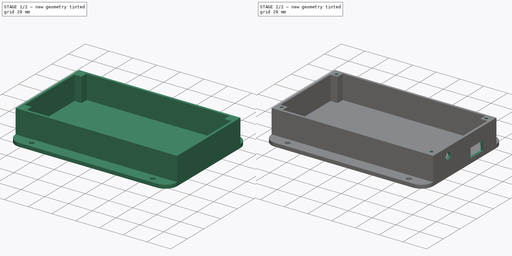
[diagram: build sequence overview — one tinted view per stage of 2, left to right]
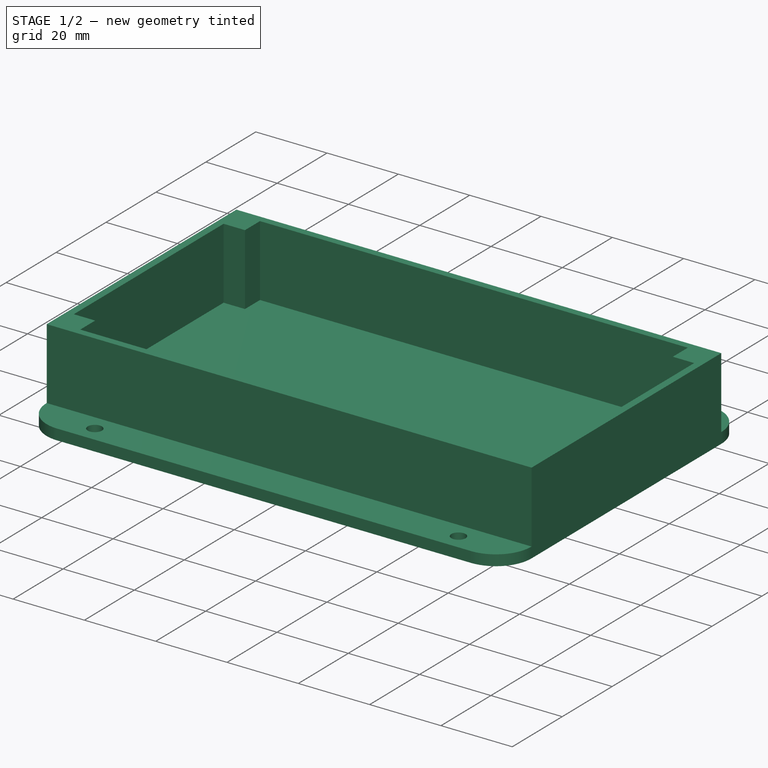
[diagram: stage 1 of 2 — iso view after this stage's code; geometry added in this stage tinted green]
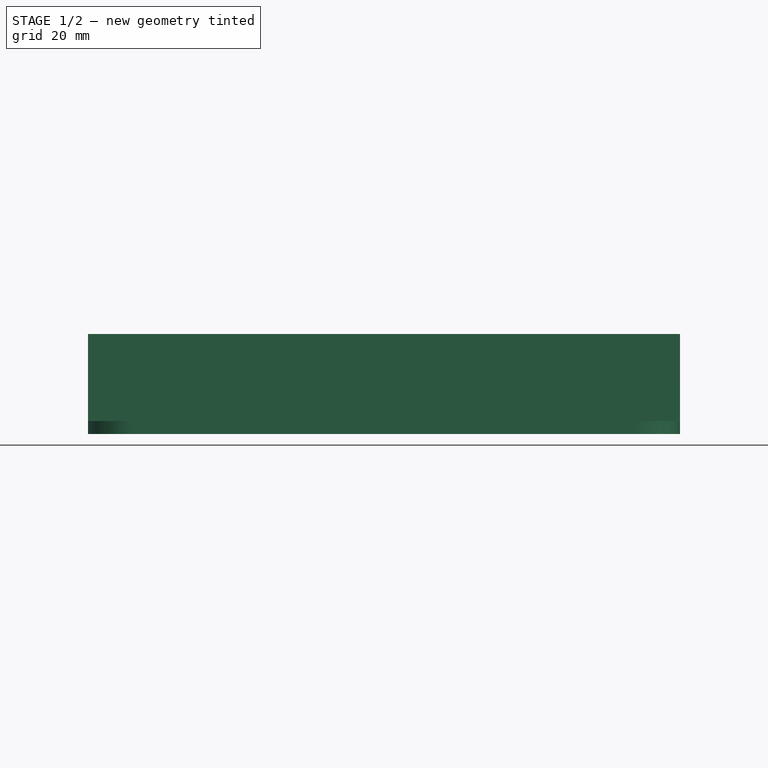
[diagram: stage 1 of 2 — front view after this stage's code; geometry added in this stage tinted green]
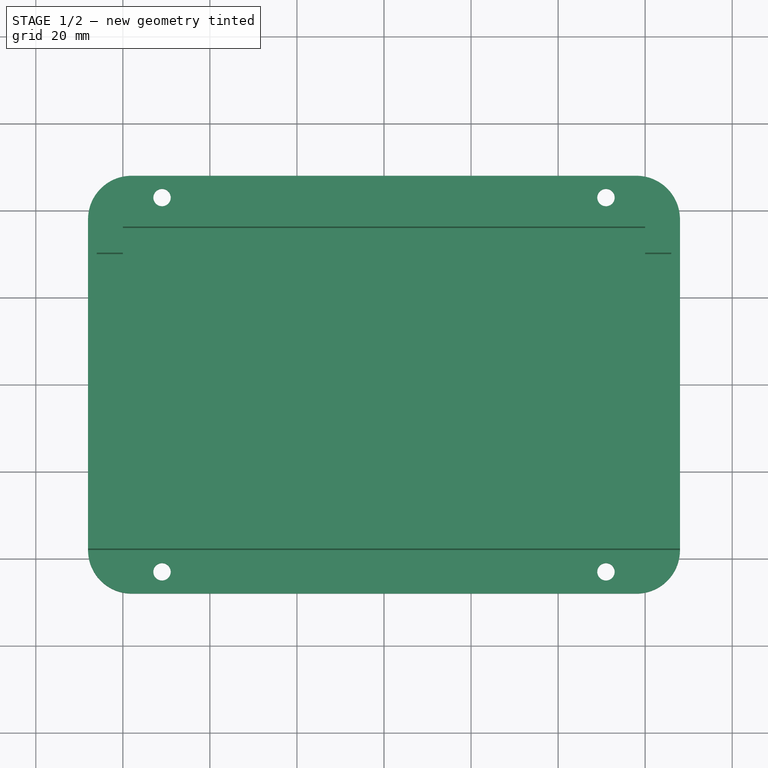
[diagram: stage 1 of 2 — top view after this stage's code; geometry added in this stage tinted green]
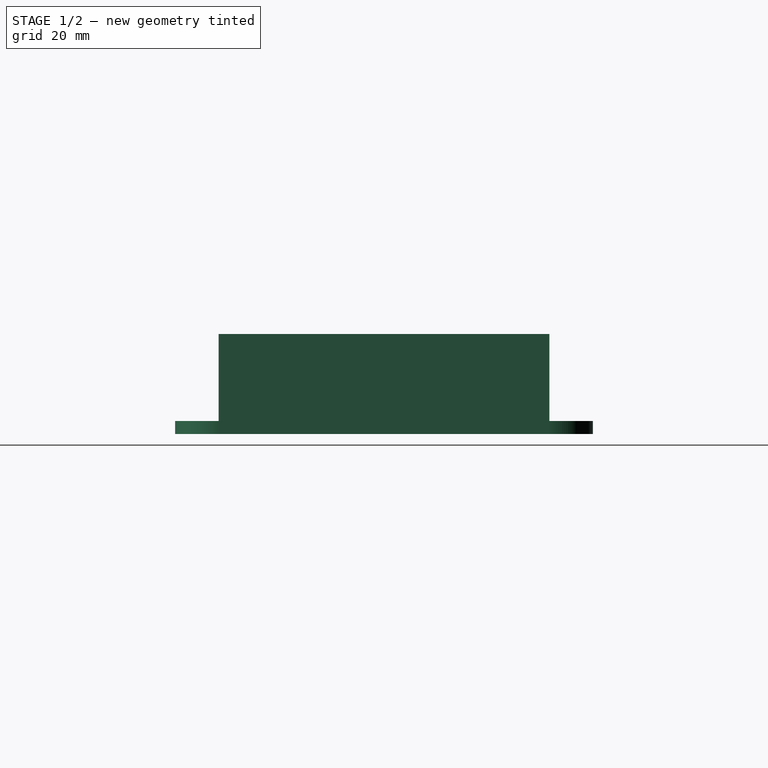
[diagram: stage 1 of 2 — right view after this stage's code; geometry added in this stage tinted green]
FCSTD DOCUMENT  (FreeCAD 0.19R24291 (Git))
Label: Base2
License: All rights reserved
LicenseURL: http://en.wikipedia.org/wiki/All_rights_reserved
objects: Sketcher::SketchObject×4, PartDesign::Pad×2, PartDesign::Pocket×2, PartDesign::Body×1
note: 13 computed .brp shape members not serialized (recipe doc carries the construction recipe); baked Part::Feature solids carry a one-line shape summary decoded from their .brp

FEATURE [Sketcher::SketchObject] Sketch
  FullyConstrained = true
  MapMode = 5
  Support = -> [XY_Plane]
  sketch-geometry (12):
    g0: LineSegment StartX=-58 StartY=48 StartZ=0 EndX=58 EndY=48 EndZ=0
    g1: LineSegment StartX=68 StartY=38 StartZ=0 EndX=68 EndY=-38 EndZ=0
    g2: LineSegment StartX=58 StartY=-48 StartZ=0 EndX=-58 EndY=-48 EndZ=0
    g3: LineSegment StartX=-68 StartY=-38 StartZ=0 EndX=-68 EndY=38 EndZ=0
    g4: Circle CenterX=-51 CenterY=43 CenterZ=0 NormalX=0 NormalY=0 NormalZ=1 AngleXU=0 Radius=2
    g5: Circle CenterX=51 CenterY=43 CenterZ=0 NormalX=0 NormalY=0 NormalZ=1 AngleXU=0 Radius=2
    g6: Circle CenterX=-51 CenterY=-43 CenterZ=0 NormalX=0 NormalY=0 NormalZ=1 AngleXU=0 Radius=2
    g7: Circle CenterX=51 CenterY=-43 CenterZ=0 NormalX=0 NormalY=0 NormalZ=1 AngleXU=0 Radius=2
    g8: ArcOfCircle CenterX=-58 CenterY=38 CenterZ=0 NormalX=0 NormalY=0 NormalZ=1 AngleXU=0 Radius=10 StartAngle=1.5708 EndAngle=3.14159
    g9: ArcOfCircle CenterX=-58 CenterY=-38 CenterZ=0 NormalX=0 NormalY=0 NormalZ=1 AngleXU=0 Radius=10 StartAngle=3.14159 EndAngle=4.71239
    g10: ArcOfCircle CenterX=58 CenterY=-38 CenterZ=0 NormalX=0 NormalY=0 NormalZ=1 AngleXU=0 Radius=10 StartAngle=4.71239 EndAngle=6.28319
    g11: ArcOfCircle CenterX=58 CenterY=38 CenterZ=0 NormalX=0 NormalY=0 NormalZ=1 AngleXU=0 Radius=10 StartAngle=0 EndAngle=1.5708
  constraints (26):
    c: Horizontal(g0)
    c: Vertical(g1)
    c: Radius(g4) = 2
    c: Equal(g4,g5) = 2
    c: Equal(g4,g6) = 2
    c: Equal(g6,g7) = 2
    c: Tangent(g0,g8) = 1.5708
    c: Tangent(g3,g8) = 1.5708
    c: Vertical(g3)
    c: Tangent(g2,g9) = 1.5708
    c: Tangent(g3,g9) = 1.5708
    c: Tangent(g1,g10) = 1.5708
    c: Tangent(g2,g10) = 1.5708
    c: Tangent(g0,g11) = 1.5708
    c: Tangent(g1,g11) = 1.5708
    c: DistanceX(g10,g1) = 10
    c: Symmetric(g8,g11,g-2)
    c: Symmetric(g9,g10,g-2)
    c: Symmetric(g8,g9,g-1)
    c: DistanceX(g8,g-1) = 58
    c: DistanceY(g-1,g11) = 38
    c: Symmetric(g4,g6,g-1)
    c: Symmetric(g5,g7,g-1)
    c: DistanceX(g4,g-1) = 51
    c: Symmetric(g4,g5,g-2)
    c: DistanceY(g6,g-1) = 43
FEATURE [PartDesign::Pad] Pad
  Direction = (1,1,1)
  Length = 3
  Length2 = 100
  Profile = -> Sketch
  Type = 0
FEATURE [Sketcher::SketchObject] Sketch001
  FullyConstrained = true
  MapMode = 5
  Placement = pos=(0,0,3) rot=(0,0,1;0rad)
  Support = -> [Pad]
  sketch-geometry (24):
    g0: LineSegment StartX=-68 StartY=38 StartZ=0 EndX=68 EndY=38 EndZ=0
    g1: LineSegment StartX=68 StartY=38 StartZ=0 EndX=68 EndY=-38 EndZ=0
    g2: LineSegment StartX=68 StartY=-38 StartZ=0 EndX=-68 EndY=-38 EndZ=0
    g3: LineSegment StartX=-68 StartY=-38 StartZ=0 EndX=-68 EndY=38 EndZ=0
    g4: LineSegment StartX=-60 StartY=36 StartZ=0 EndX=60 EndY=36 EndZ=0
    g5: LineSegment StartX=66 StartY=30 StartZ=0 EndX=66 EndY=-30 EndZ=0
    g6: LineSegment StartX=60 StartY=-36 StartZ=0 EndX=-60 EndY=-36 EndZ=0
    g7: LineSegment StartX=-66 StartY=-30 StartZ=0 EndX=-66 EndY=30 EndZ=0
    g8: LineSegment StartX=-66 StartY=-30 StartZ=0 EndX=-60 EndY=-30 EndZ=0
    g9: LineSegment StartX=-60 StartY=-30 StartZ=0 EndX=-60 EndY=-36 EndZ=0
    g10: GeomPoint X=-63 Y=-30 Z=0
    g11: GeomPoint X=-60 Y=-33 Z=0
    g12: LineSegment StartX=60 StartY=-36 StartZ=0 EndX=60 EndY=-30 EndZ=0
    g13: LineSegment StartX=66 StartY=-30 StartZ=0 EndX=60 EndY=-30 EndZ=0
    g14: GeomPoint X=60 Y=-33 Z=0
    g15: GeomPoint X=63 Y=-30 Z=0
    g16: LineSegment StartX=60 StartY=36 StartZ=0 EndX=60 EndY=30 EndZ=0
    g17: LineSegment StartX=66 StartY=30 StartZ=0 EndX=60 EndY=30 EndZ=0
    g18: GeomPoint X=60 Y=33 Z=0
    g19: GeomPoint X=63 Y=30 Z=0
    g20: LineSegment StartX=-66 StartY=30 StartZ=0 EndX=-60 EndY=30 EndZ=0
    g21: LineSegment StartX=-60 StartY=36 StartZ=0 EndX=-60 EndY=30 EndZ=0
    g22: GeomPoint X=-63 Y=30 Z=0
    g23: GeomPoint X=-60 Y=33 Z=0
  constraints (61):
    c: Coincident(g0,g1)
    c: Coincident(g1,g2)
    c: Coincident(g2,g3)
    c: Coincident(g3,g0)
    c: DistanceX(g2,g-1) = 68
    c: DistanceY(g-1,g0) = 38
    c: Symmetric(g0,g1,g-1)
    c: Symmetric(g0,g0,g-2)
    c: Horizontal(g6)
    c: Vertical(g7)
    c: Horizontal(g8)
    c: Coincident(g9,g8)
    c: Vertical(g9)
    c: Equal(g8,g9)
    c: DistanceX(g8,g8) = 6
    c: Coincident(g7,g8)
    c: Coincident(g6,g9)
    c: PointOnObject(g10,g8)
    c: DistanceX(g7,g10) = 3
    c: PointOnObject(g11,g9)
    c: DistanceY(g6,g11) = 3
    c: Vertical(g5)
    c: Horizontal(g4)
    c: Symmetric(g0,g2,g-1)
    c: Vertical(g12)
    c: Coincident(g13,g12)
    c: Horizontal(g13)
    c: Equal(g13,g12)
    c: DistanceY(g12,g12) = 6
    c: Coincident(g5,g13)
    c: Coincident(g6,g12)
    c: PointOnObject(g14,g12)
    c: PointOnObject(g15,g13)
    c: DistanceX(g15,g5) = 3
    c: DistanceY(g6,g14) = 3
    c: Coincident(g17,g16)
    c: Horizontal(g17)
    c: DistanceY(g16,g16) = 6
    c: DistanceX(g17,g17) = 6
    c: Coincident(g4,g16)
    c: Coincident(g5,g17)
    c: PointOnObject(g18,g16)
    c: PointOnObject(g19,g17)
    c: DistanceY(g18,g4) = 3
    c: DistanceX(g19,g5) = 3
    c: Vertical(g16)
    c: Horizontal(g20)
    c: Coincident(g21,g20)
    c: Vertical(g21)
    c: Coincident(g7,g20)
    c: Coincident(g4,g21)
    c: PointOnObject(g22,g20)
    c: PointOnObject(g23,g21)
    c: DistanceX(g7,g22) = 3
    c: DistanceY(g23,g4) = 3
    c: Equal(g21,g20)
    c: DistanceX(g20,g20) = 6
    c: DistanceX(g4,g4) = 120
    c: DistanceY(g5,g5) = 60
    c: DistanceY(g5,g-1) = 30
    c: DistanceX(g7,g-1) = 66
FEATURE [PartDesign::Pad] Pad001
  BaseFeature = -> Pad
  Direction = (1,1,1)
  Length = 20
  Length2 = 100
  Profile = -> Sketch001
  Type = 0
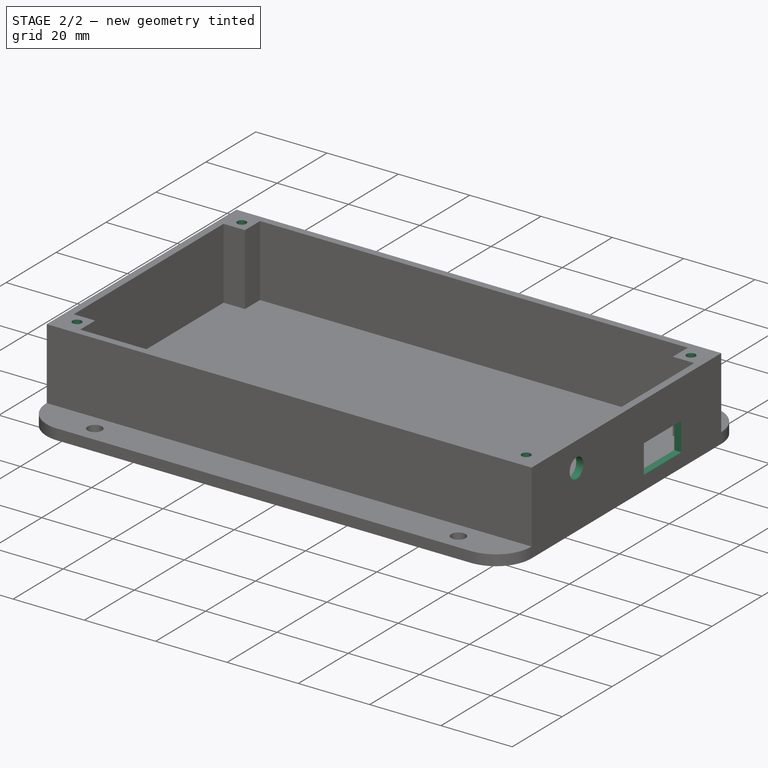
[diagram: stage 2 of 2 — iso view after this stage's code; geometry added in this stage tinted green]
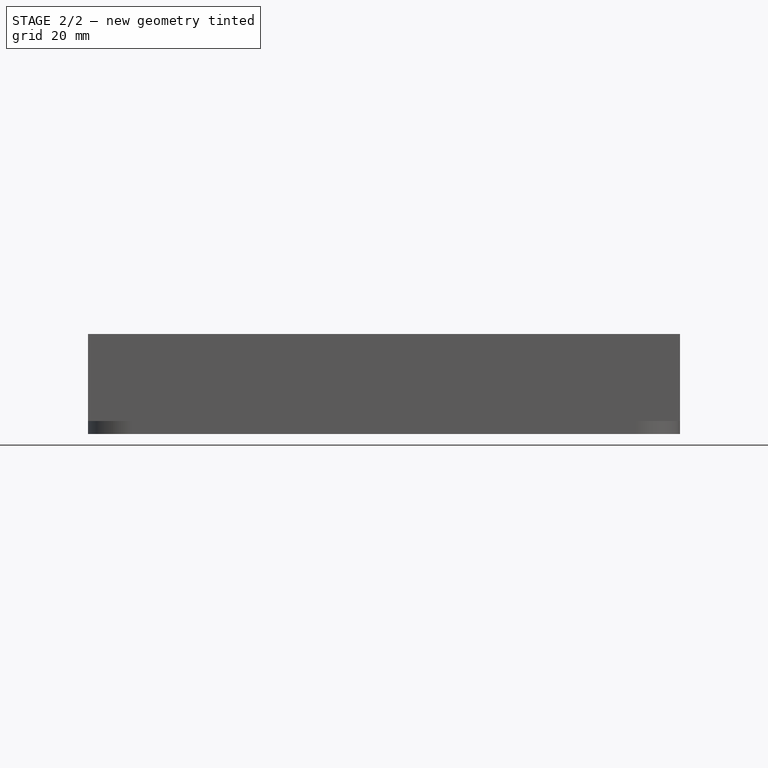
[diagram: stage 2 of 2 — front view after this stage's code; geometry added in this stage tinted green]
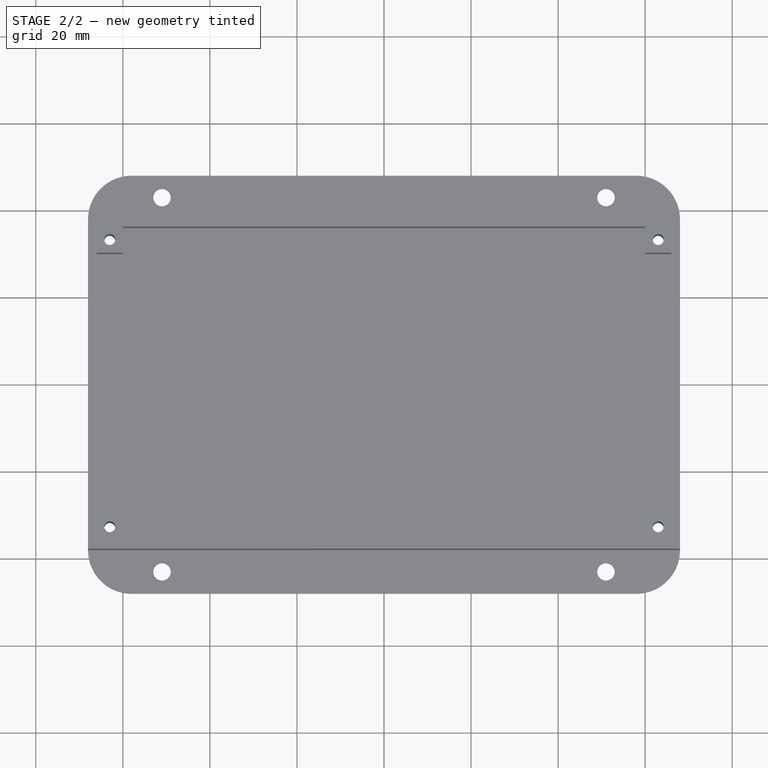
[diagram: stage 2 of 2 — top view after this stage's code; geometry added in this stage tinted green]
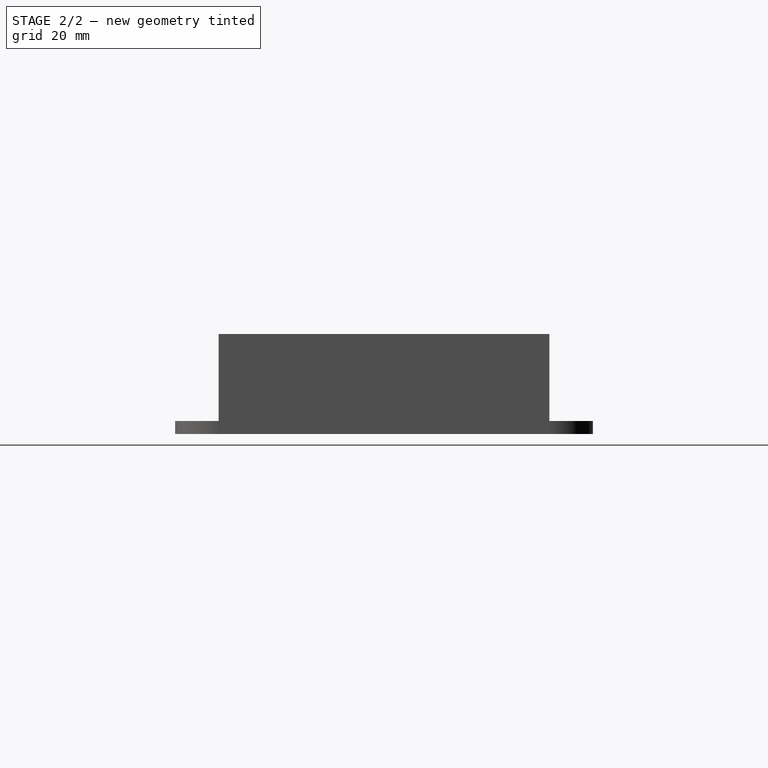
[diagram: stage 2 of 2 — right view after this stage's code; geometry added in this stage tinted green]
FEATURE [Sketcher::SketchObject] Sketch002
  FullyConstrained = true
  MapMode = 5
  Placement = pos=(0,0,23) rot=(0,0,1;0rad)
  sketch-geometry (4):
    g0: Circle CenterX=63 CenterY=-33 CenterZ=0 NormalX=0 NormalY=0 NormalZ=1 AngleXU=0 Radius=1.25
    g1: Circle CenterX=-63 CenterY=-33 CenterZ=0 NormalX=0 NormalY=0 NormalZ=1 AngleXU=0 Radius=1.25
    g2: Circle CenterX=-63 CenterY=33 CenterZ=0 NormalX=0 NormalY=0 NormalZ=1 AngleXU=0 Radius=1.25
    g3: Circle CenterX=63 CenterY=33 CenterZ=0 NormalX=0 NormalY=0 NormalZ=1 AngleXU=0 Radius=1.25
  constraints (9):
    c: DistanceX(g-1,g0) = 63
    c: DistanceY(g0,g-1) = 33
    c: Diameter(g0) = 2.5
    c: Equal(g0,g1) = 2.5
    c: Symmetric(g1,g0,g-2)
    c: Equal(g0,g2) = 2.5
    c: Symmetric(g2,g1,g-1)
    c: Equal(g0,g3) = 2.5
    c: Symmetric(g3,g0,g-1)
FEATURE [PartDesign::Pocket] Pocket
  BaseFeature = -> Pad001
  Length = 23
  Length2 = 100
  Profile = -> Sketch002
  Type = 0
FEATURE [Sketcher::SketchObject] Sketch003
  FullyConstrained = true
  MapMode = 5
  Placement = pos=(68,0,0) rot=(0.57735,0.57735,0.57735;2.0944rad)
  Support = -> [Pocket]
  sketch-geometry (5):
    g0: Circle CenterX=-20 CenterY=16 CenterZ=0 NormalX=0 NormalY=0 NormalZ=1 AngleXU=0 Radius=2.75
    g1: LineSegment StartX=7 StartY=12 StartZ=0 EndX=22 EndY=12 EndZ=0
    g2: LineSegment StartX=22 StartY=12 StartZ=0 EndX=22 EndY=4 EndZ=0
    g3: LineSegment StartX=22 StartY=4 StartZ=0 EndX=7 EndY=4 EndZ=0
    g4: LineSegment StartX=7 StartY=4 StartZ=0 EndX=7 EndY=12 EndZ=0
  constraints (15):
    c: Diameter(g0) = 5.5
    c: DistanceX(g0,g-1) = 20
    c: Coincident(g1,g2)
    c: Coincident(g2,g3)
    c: Coincident(g3,g4)
    c: Coincident(g4,g1)
    c: Horizontal(g1)
    c: Horizontal(g3)
    c: Vertical(g2)
    c: Vertical(g4)
    c: DistanceY(g-1,g0) = 16
    c: DistanceX(g1,g1) = 15
    c: DistanceY(g2,g2) = 8
    c: DistanceX(g-1,g3) = 7
    c: DistanceY(g-1,g3) = 4
FEATURE [PartDesign::Pocket] Pocket001
  BaseFeature = -> Pocket
  Length = 5
  Length2 = 100
  Profile = -> Sketch003
  Type = 0
FEATURE [PartDesign::Body] Body
  Group = -> [Sketch,Pad,Sketch001,Pad001,Sketch002,Pocket,Sketch003,Pocket001]
  Origin = -> Origin
  Tip = -> Pocket001
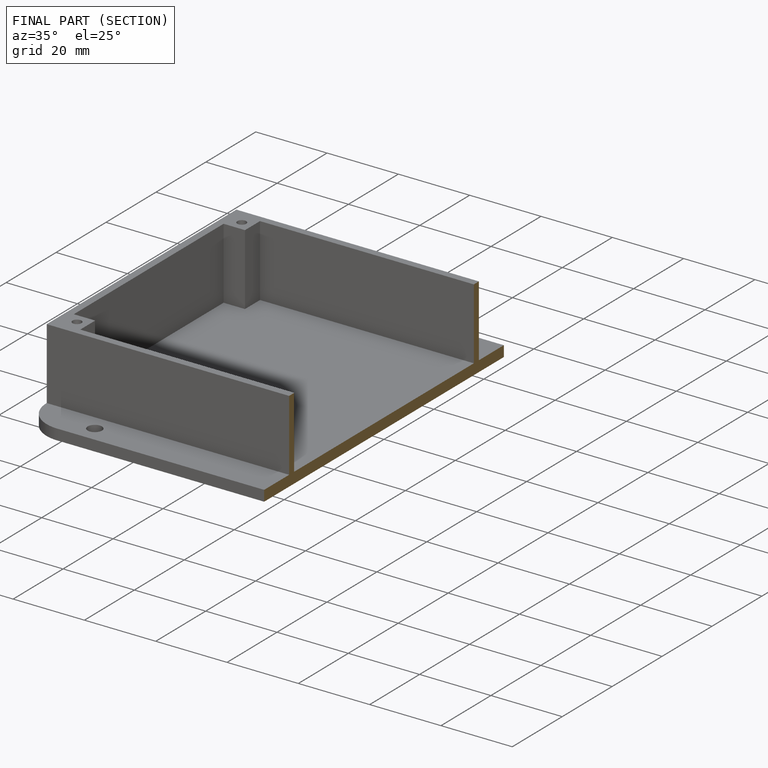
[diagram: finished part — half-section view (interior)]
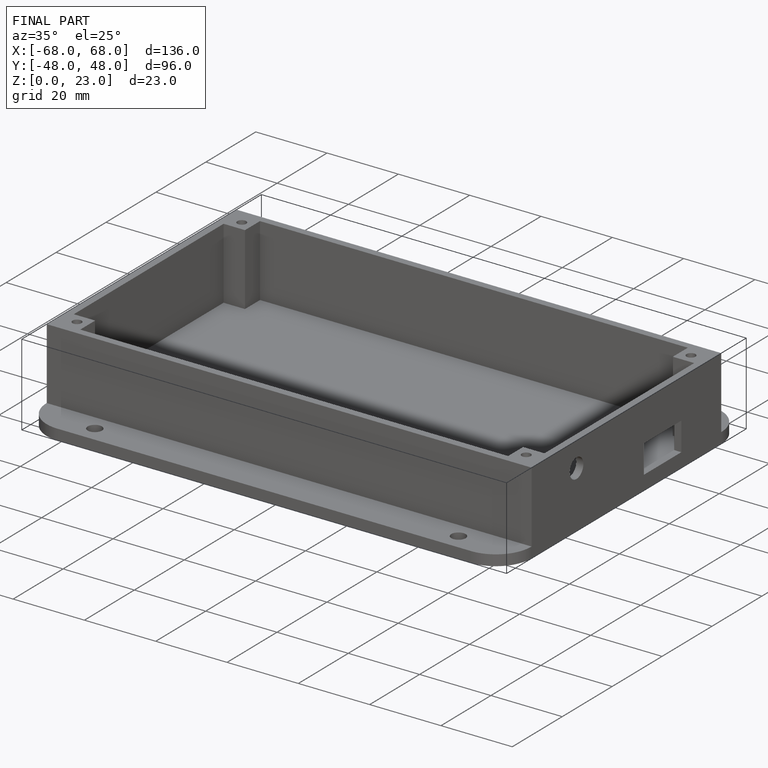
[diagram: finished part — iso view with bounding-box wireframe]
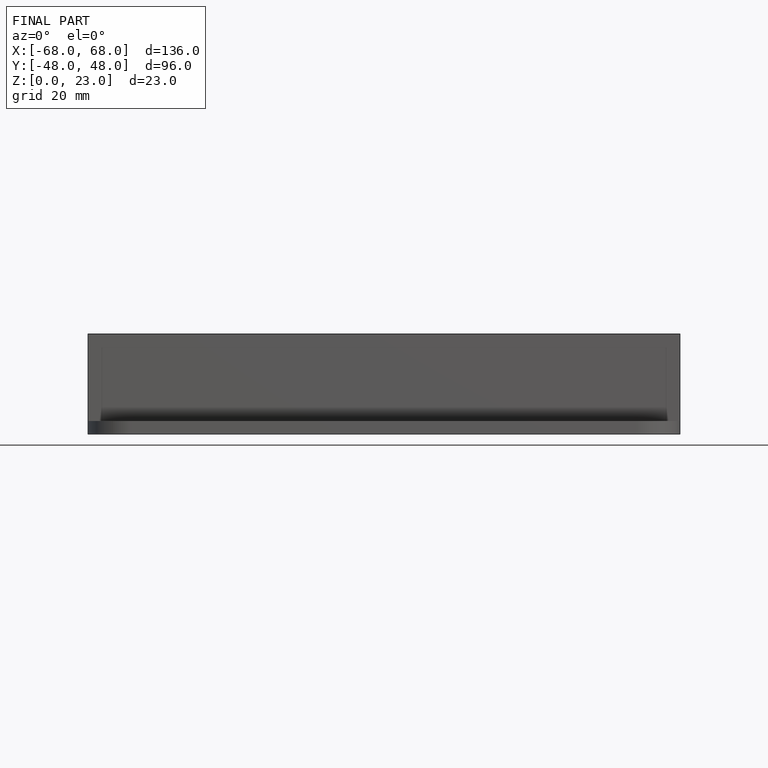
[diagram: finished part — front view with bounding-box wireframe]
